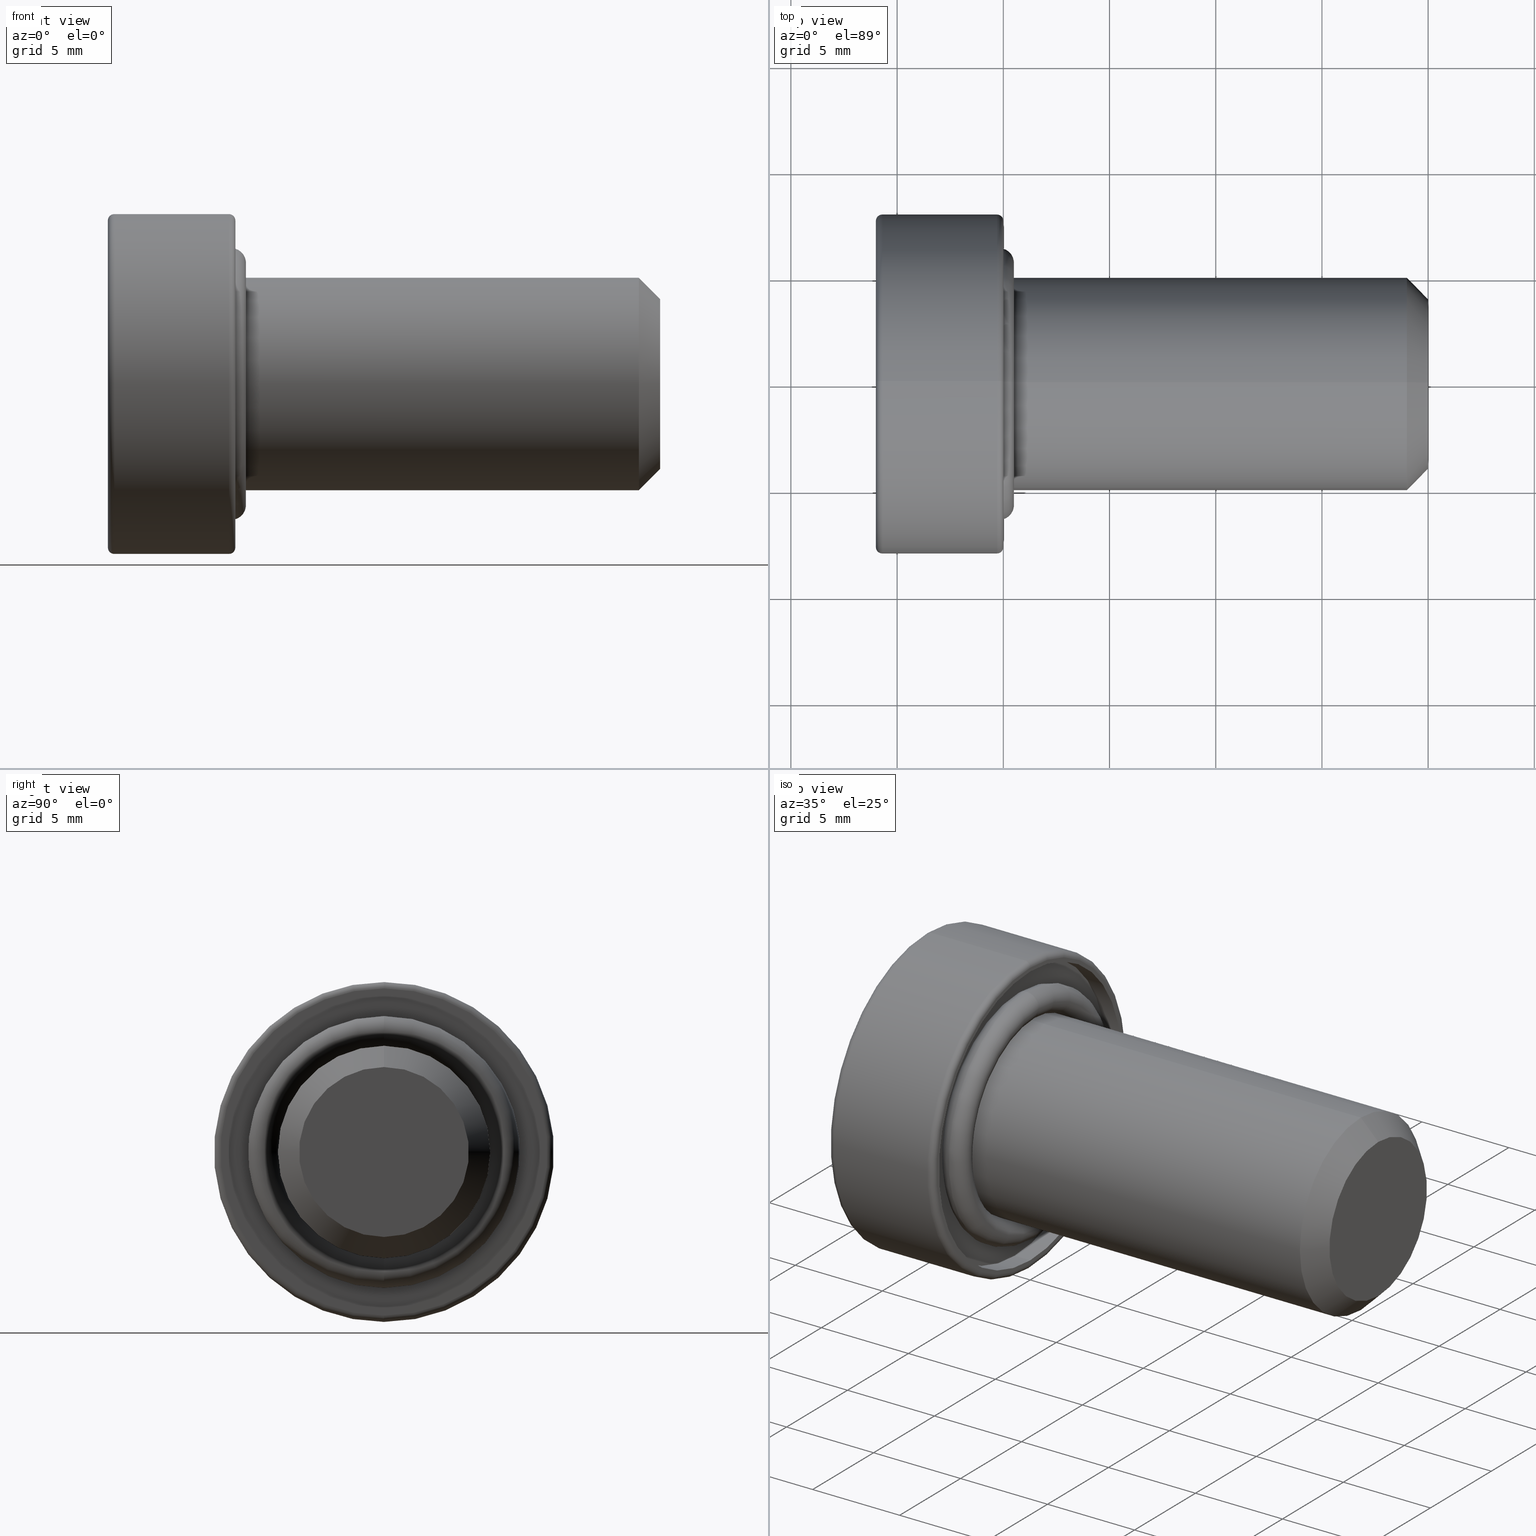
[diagram: canonical four-view strip — front | top / right | iso, engineering-drawing reading convention]
A machine part, canonical four-view strip (front | top / right | iso — engineering-drawing reading convention). The complete STEP part file that produces these views, byte-faithful:
ISO-10303-21;
HEADER;
FILE_DESCRIPTION (( 'STEP AP214' ),
    '1' );
FILE_NAME ('TL_418_M10_20.STEP',
    '2016-01-25T00:34:40',
    ( '' ),
    ( '' ),
    'SwSTEP 2.0',
    'SolidWorks 2015',
    '' );
FILE_SCHEMA (( 'AUTOMOTIVE_DESIGN' ));
ENDSEC;

DATA;
#1 = STYLED_ITEM ( 'NONE', ( #541 ), #718 ) ;
#2 = EDGE_CURVE ( 'NONE', #131, #130, #731, .T. ) ;
#3 = AXIS2_PLACEMENT_3D ( 'NONE', #296, #431, #243 ) ;
#4 = CARTESIAN_POINT ( 'NONE',  ( -0.2000000000000000900, 0.0000000000000000000, 0.0000000000000000000 ) ) ;
#5 = DIRECTION ( 'NONE',  ( -0.0000000000000000000, -1.000000000000000000, -0.0000000000000000000 ) ) ;
#6 = LINE ( 'NONE', #182, #668 ) ;
#7 = COLOUR_RGB ( '',0.7921568627450980000, 0.8196078431372548800, 0.9333333333333333500 ) ;
#8 = PRODUCT_DEFINITION_SHAPE ( 'NONE', 'NONE',  #820 ) ;
#9 = EDGE_LOOP ( 'NONE', ( #239, #242 ) ) ;
#10 = DIRECTION ( 'NONE',  ( 0.0000000000000000000, 0.0000000000000000000, 1.000000000000000000 ) ) ;
#11 = CARTESIAN_POINT ( 'NONE',  ( -0.2000000000000000900, 6.980486755139913100E-016, 5.700000000000000200 ) ) ;
#12 = ORIENTED_EDGE ( 'NONE', *, *, #689, .T. ) ;
#13 = ORIENTED_EDGE ( 'NONE', *, *, #388, .T. ) ;
#14 = EDGE_CURVE ( 'NONE', #605, #250, #246, .T. ) ;
#15 =( REPRESENTATION_RELATIONSHIP ('NONE','NONE', #551, #202 ) REPRESENTATION_RELATIONSHIP_WITH_TRANSFORMATION ( #579 )SHAPE_REPRESENTATION_RELATIONSHIP( ) );
#16 = DIRECTION ( 'NONE',  ( -1.000000000000000000, -0.0000000000000000000, -0.0000000000000000000 ) ) ;
#17 = STYLED_ITEM ( 'NONE', ( #685 ), #533 ) ;
#18 = FACE_OUTER_BOUND ( 'NONE', #819, .T. ) ;
#19 = EDGE_LOOP ( 'NONE', ( #676, #638, #223, #58 ) ) ;
#20 = EDGE_CURVE ( 'NONE', #787, #605, #557, .T. ) ;
#21 = DIRECTION ( 'NONE',  ( 1.000000000000000000, -0.0000000000000000000, -0.0000000000000000000 ) ) ;
#22 = ORIENTED_EDGE ( 'NONE', *, *, #69, .F. ) ;
#23 = SURFACE_STYLE_FILL_AREA ( #199 ) ;
#24 = ORIENTED_EDGE ( 'NONE', *, *, #587, .T. ) ;
#25 = CARTESIAN_POINT ( 'NONE',  ( -2.000000000000000000, -1.732050807568655800, -2.999999999999614100 ) ) ;
#26 = PLANE ( 'NONE',  #659 ) ;
#27 = ORIENTED_EDGE ( 'NONE', *, *, #112, .T. ) ;
#28 = DIRECTION ( 'NONE',  ( 1.000000000000000000, 0.0000000000000000000, 0.0000000000000000000 ) ) ;
#29 = ADVANCED_FACE ( 'NONE', ( #52 ), #571, .F. ) ;
#30 = DIRECTION ( 'NONE',  ( -0.0000000000000000000, -0.4999999999999999400, 0.8660254037844387100 ) ) ;
#31 = SURFACE_STYLE_FILL_AREA ( #132 ) ;
#32 = AXIS2_PLACEMENT_3D ( 'NONE', #384, #478, #396 ) ;
#33 = FACE_OUTER_BOUND ( 'NONE', #147, .T. ) ;
#34 = FACE_OUTER_BOUND ( 'NONE', #276, .T. ) ;
#35 = CARTESIAN_POINT ( 'NONE',  ( -0.9000000000000000200, 0.0000000000000000000, 0.0000000000000000000 ) ) ;
#36 = CARTESIAN_POINT ( 'NONE',  ( 20.00000000000000000, 0.0000000000000000000, 0.0000000000000000000 ) ) ;
#37 = AXIS2_PLACEMENT_3D ( 'NONE', #769, #639, #681 ) ;
#38 = UNCERTAINTY_MEASURE_WITH_UNIT (LENGTH_MEASURE( 1.000000000000000100E-005 ), #399, 'distance_accuracy_value', 'NONE');
#39 = EDGE_CURVE ( 'NONE', #337, #84, #540, .T. ) ;
#40 = DIRECTION ( 'NONE',  ( 1.000000000000000000, -0.0000000000000000000, -0.0000000000000000000 ) ) ;
#41 = CIRCLE ( 'NONE', #814, 7.500000000000000000 ) ;
#42 = ORIENTED_EDGE ( 'NONE', *, *, #815, .F. ) ;
#43 = EDGE_LOOP ( 'NONE', ( #621, #60, #27, #55 ) ) ;
#44 = ORIENTED_EDGE ( 'NONE', *, *, #441, .T. ) ;
#45 = ORIENTED_EDGE ( 'NONE', *, *, #39, .F. ) ;
#46 = ORIENTED_EDGE ( 'NONE', *, *, #39, .T. ) ;
#47 = VERTEX_POINT ( 'NONE', #561 ) ;
#48 = CARTESIAN_POINT ( 'NONE',  ( -2.000000000000000000, -3.464101615137309900, 0.0000000000000000000 ) ) ;
#49 = PRESENTATION_LAYER_ASSIGNMENT (  '', '', ( #1 ) ) ;
#50 = CARTESIAN_POINT ( 'NONE',  ( 19.00000000000000000, 0.0000000000000000000, 0.0000000000000000000 ) ) ;
#51 = LINE ( 'NONE', #168, #245 ) ;
#52 = FACE_OUTER_BOUND ( 'NONE', #209, .T. ) ;
#53 = DIRECTION ( 'NONE',  ( 0.0000000000000000000, 0.0000000000000000000, -1.000000000000000000 ) ) ;
#54 = TOROIDAL_SURFACE ( 'NONE', #570, 7.700000000000000200, 0.2999999999999999900 ) ;
#55 = ORIENTED_EDGE ( 'NONE', *, *, #467, .T. ) ;
#56 = EDGE_LOOP ( 'NONE', ( #484, #334, #658, #502 ) ) ;
#57 = ORIENTED_EDGE ( 'NONE', *, *, #524, .T. ) ;
#58 = ORIENTED_EDGE ( 'NONE', *, *, #174, .T. ) ;
#59 = DIRECTION ( 'NONE',  ( 0.0000000000000000000, 1.000000000000000000, -1.224646799147353200E-016 ) ) ;
#60 = ORIENTED_EDGE ( 'NONE', *, *, #608, .F. ) ;
#61 = EDGE_LOOP ( 'NONE', ( #397, #714, #544, #568 ) ) ;
#62 = DIRECTION ( 'NONE',  ( 0.0000000000000000000, 0.0000000000000000000, -1.000000000000000000 ) ) ;
#63 = CARTESIAN_POINT ( 'NONE',  ( -2.000000000000000000, 1.732050807568654900, 2.999999999999611400 ) ) ;
#64 = VECTOR ( 'NONE', #509, 1000.000000000000000 ) ;
#65 = ORIENTED_EDGE ( 'NONE', *, *, #587, .F. ) ;
#66 = AXIS2_PLACEMENT_3D ( 'NONE', #280, #266, #412 ) ;
#67 = VERTEX_POINT ( 'NONE', #757 ) ;
#68 = CARTESIAN_POINT ( 'NONE',  ( -6.000000000000000000, 1.732050807568654900, 2.999999999999611400 ) ) ;
#69 = EDGE_CURVE ( 'NONE', #218, #301, #365, .T. ) ;
#70 = DIRECTION ( 'NONE',  ( -1.000000000000000000, 0.0000000000000000000, 0.0000000000000000000 ) ) ;
#71 = ADVANCED_FACE ( 'NONE', ( #707 ), #206, .T. ) ;
#72 = DIRECTION ( 'NONE',  ( 0.0000000000000000000, 0.0000000000000000000, 1.000000000000000000 ) ) ;
#73 = PRODUCT_CONTEXT ( 'NONE', #527, 'mechanical' ) ;
#74 = LINE ( 'NONE', #68, #389 ) ;
#75 = VECTOR ( 'NONE', #644, 1000.000000000000100 ) ;
#76 = CONTEXT_DEPENDENT_SHAPE_REPRESENTATION ( #15, #8 ) ;
#77 = DIRECTION ( 'NONE',  ( 0.0000000000000000000, 0.0000000000000000000, 1.000000000000000000 ) ) ;
#78 = TOROIDAL_SURFACE ( 'NONE', #491, 5.700000000000000200, 0.6999999999999997300 ) ;
#79 = VERTEX_POINT ( 'NONE', #236 ) ;
#80 = ORIENTED_EDGE ( 'NONE', *, *, #542, .T. ) ;
#81 =( GEOMETRIC_REPRESENTATION_CONTEXT ( 3 ) GLOBAL_UNCERTAINTY_ASSIGNED_CONTEXT ( ( #38 ) ) GLOBAL_UNIT_ASSIGNED_CONTEXT ( ( #399, #259, #287 ) ) REPRESENTATION_CONTEXT ( 'NONE', 'WORKASPACE' ) );
#82 = PLANE ( 'NONE',  #701 ) ;
#83 = CARTESIAN_POINT ( 'NONE',  ( -6.000000000000000000, -1.732050807568653800, 2.999999999999613200 ) ) ;
#84 = VERTEX_POINT ( 'NONE', #387 ) ;
#85 = CARTESIAN_POINT ( 'NONE',  ( -0.2999999999999999300, 0.0000000000000000000, -8.000000000000000000 ) ) ;
#86 = DIRECTION ( 'NONE',  ( 0.0000000000000000000, 1.224646799147353500E-016, 1.000000000000000000 ) ) ;
#87 = AXIS2_PLACEMENT_3D ( 'NONE', #453, #703, #203 ) ;
#88 = EDGE_CURVE ( 'NONE', #358, #368, #229, .T. ) ;
#89 = DIRECTION ( 'NONE',  ( 0.0000000000000000000, 0.0000000000000000000, -1.000000000000000000 ) ) ;
#90 = FACE_OUTER_BOUND ( 'NONE', #647, .T. ) ;
#91 = ORIENTED_EDGE ( 'NONE', *, *, #632, .T. ) ;
#92 = CIRCLE ( 'NONE', #386, 5.000000000000000000 ) ;
#93 = VERTEX_POINT ( 'NONE', #248 ) ;
#94 = DIRECTION ( 'NONE',  ( 1.000000000000000000, 0.0000000000000000000, 0.0000000000000000000 ) ) ;
#95 = DIRECTION ( 'NONE',  ( 0.0000000000000000000, 0.0000000000000000000, -1.000000000000000000 ) ) ;
#96 = DIRECTION ( 'NONE',  ( 0.0000000000000000000, 0.0000000000000000000, -1.000000000000000000 ) ) ;
#97 = DIRECTION ( 'NONE',  ( 0.0000000000000000000, 1.000000000000000000, -1.224646799147353200E-016 ) ) ;
#98 = MECHANICAL_DESIGN_GEOMETRIC_PRESENTATION_REPRESENTATION (  '', ( #1 ), #140 ) ;
#99 = FACE_OUTER_BOUND ( 'NONE', #19, .T. ) ;
#100 = AXIS2_PLACEMENT_3D ( 'NONE', #50, #178, #486 ) ;
#101 = ORIENTED_EDGE ( 'NONE', *, *, #407, .T. ) ;
#102 = CIRCLE ( 'NONE', #409, 0.7000000000000000700 ) ;
#103 = ORIENTED_EDGE ( 'NONE', *, *, #738, .T. ) ;
#104 = CARTESIAN_POINT ( 'NONE',  ( 19.00000000000000000, 0.0000000000000000000, 5.000000000000000000 ) ) ;
#105 = ADVANCED_FACE ( 'NONE', ( #33 ), #82, .F. ) ;
#106 = CYLINDRICAL_SURFACE ( 'NONE', #390, 8.000000000000000000 ) ;
#107 = ORIENTED_EDGE ( 'NONE', *, *, #427, .F. ) ;
#108 = FACE_OUTER_BOUND ( 'NONE', #678, .T. ) ;
#109 = ADVANCED_FACE ( 'NONE', ( #520 ), #189, .F. ) ;
#110 = CARTESIAN_POINT ( 'NONE',  ( -0.2000000000000000900, 6.980486755139913100E-016, 5.700000000000000200 ) ) ;
#111 = PRESENTATION_LAYER_ASSIGNMENT (  '', '', ( #17 ) ) ;
#112 = EDGE_CURVE ( 'NONE', #301, #368, #686, .T. ) ;
#113 = PLANE ( 'NONE',  #146 ) ;
#114 = DIRECTION ( 'NONE',  ( 1.000000000000000000, 0.0000000000000000000, 0.0000000000000000000 ) ) ;
#115 = CARTESIAN_POINT ( 'NONE',  ( 0.0000000000000000000, 0.0000000000000000000, -7.700000000000000200 ) ) ;
#116 = VERTEX_POINT ( 'NONE', #687 ) ;
#117 = LINE ( 'NONE', #331, #772 ) ;
#118 = ORIENTED_EDGE ( 'NONE', *, *, #373, .F. ) ;
#119 = CARTESIAN_POINT ( 'NONE',  ( -0.2000000000000001800, 0.0000000000000000000, -5.000000000000000000 ) ) ;
#120 = CLOSED_SHELL ( 'NONE', ( #650, #71, #432, #188, #343, #233, #737, #487, #305, #355, #554, #195, #318, #422, #670, #726, #109, #172, #483, #29, #105, #327, #666 ) ) ;
#121 = UNCERTAINTY_MEASURE_WITH_UNIT (LENGTH_MEASURE( 1.000000000000000100E-005 ), #529, 'distance_accuracy_value', 'NONE');
#122 = ORIENTED_EDGE ( 'NONE', *, *, #815, .T. ) ;
#123 = CARTESIAN_POINT ( 'NONE',  ( -2.000000000000000000, -3.464101615137309900, 0.0000000000000000000 ) ) ;
#124 = PRODUCT_DEFINITION_SHAPE ( 'NONE', 'NONE',  #574 ) ;
#125 = CONICAL_SURFACE ( 'NONE', #180, 4.000000000000007100, 0.7853981633974445000 ) ;
#126 = AXIS2_PLACEMENT_3D ( 'NONE', #408, #152, #589 ) ;
#127 = DIRECTION ( 'NONE',  ( -0.0000000000000000000, 0.5000000000000004400, 0.8660254037844383700 ) ) ;
#128 = LINE ( 'NONE', #511, #784 ) ;
#129 = EDGE_CURVE ( 'NONE', #93, #751, #6, .T. ) ;
#130 = VERTEX_POINT ( 'NONE', #810 ) ;
#131 = VERTEX_POINT ( 'NONE', #115 ) ;
#132 = FILL_AREA_STYLE ('',( #196 ) ) ;
#133 = VERTEX_POINT ( 'NONE', #48 ) ;
#134 = CARTESIAN_POINT ( 'NONE',  ( -5.700000000000000200, 9.429780353434619000E-016, 7.700000000000000200 ) ) ;
#135 = CARTESIAN_POINT ( 'NONE',  ( 20.00000000000000000, 0.0000000000000000000, 0.0000000000000000000 ) ) ;
#136 = DIRECTION ( 'NONE',  ( 0.0000000000000000000, 0.0000000000000000000, -1.000000000000000000 ) ) ;
#137 = CIRCLE ( 'NONE', #424, 4.000000000000007100 ) ;
#138 = CARTESIAN_POINT ( 'NONE',  ( 20.00000000000000000, 0.0000000000000000000, 0.0000000000000000000 ) ) ;
#139 = ORIENTED_EDGE ( 'NONE', *, *, #388, .F. ) ;
#140 =( GEOMETRIC_REPRESENTATION_CONTEXT ( 3 ) GLOBAL_UNCERTAINTY_ASSIGNED_CONTEXT ( ( #619 ) ) GLOBAL_UNIT_ASSIGNED_CONTEXT ( ( #448, #653, #735 ) ) REPRESENTATION_CONTEXT ( 'NONE', 'WORKASPACE' ) );
#141 = ORIENTED_EDGE ( 'NONE', *, *, #14, .F. ) ;
#142 = ORIENTED_EDGE ( 'NONE', *, *, #768, .F. ) ;
#143 = EDGE_LOOP ( 'NONE', ( #210, #351, #12, #167 ) ) ;
#144 =( LENGTH_UNIT ( ) NAMED_UNIT ( * ) SI_UNIT ( .MILLI., .METRE. ) );
#145 = DIRECTION ( 'NONE',  ( 0.0000000000000000000, 0.0000000000000000000, -1.000000000000000000 ) ) ;
#146 = AXIS2_PLACEMENT_3D ( 'NONE', #563, #804, #295 ) ;
#147 = EDGE_LOOP ( 'NONE', ( #302, #426, #139, #466 ) ) ;
#148 = CARTESIAN_POINT ( 'NONE',  ( -5.700000000000000200, 9.797174393178825700E-016, 8.000000000000000000 ) ) ;
#149 = CARTESIAN_POINT ( 'NONE',  ( 0.0000000000000000000, 0.0000000000000000000, 0.0000000000000000000 ) ) ;
#150 = VECTOR ( 'NONE', #385, 1000.000000000000000 ) ;
#151 = LINE ( 'NONE', #123, #781 ) ;
#152 = DIRECTION ( 'NONE',  ( 1.000000000000000000, -0.0000000000000000000, -0.0000000000000000000 ) ) ;
#153 = CARTESIAN_POINT ( 'NONE',  ( -0.9000000000000000200, 0.0000000000000000000, 0.0000000000000000000 ) ) ;
#154 = CARTESIAN_POINT ( 'NONE',  ( -2.000000000000000000, 1.732050807568654900, 2.999999999999611400 ) ) ;
#155 = ORIENTED_EDGE ( 'NONE', *, *, #2, .T. ) ;
#156 = SURFACE_STYLE_USAGE ( .BOTH. , #643 ) ;
#157 = CARTESIAN_POINT ( 'NONE',  ( 20.00000000000000000, 0.0000000000000000000, 0.0000000000000000000 ) ) ;
#158 = MECHANICAL_DESIGN_GEOMETRIC_PRESENTATION_REPRESENTATION (  '', ( #17 ), #192 ) ;
#159 = EDGE_CURVE ( 'NONE', #300, #605, #348, .T. ) ;
#160 =( NAMED_UNIT ( * ) SI_UNIT ( $, .STERADIAN. ) SOLID_ANGLE_UNIT ( ) );
#161 = DIRECTION ( 'NONE',  ( 1.000000000000000000, -0.0000000000000000000, -0.0000000000000000000 ) ) ;
#162 = FACE_OUTER_BOUND ( 'NONE', #56, .T. ) ;
#163 = ORIENTED_EDGE ( 'NONE', *, *, #493, .T. ) ;
#164 = DIRECTION ( 'NONE',  ( 0.0000000000000000000, 0.0000000000000000000, -1.000000000000000000 ) ) ;
#165 = DIRECTION ( 'NONE',  ( 0.0000000000000000000, 0.0000000000000000000, -1.000000000000000000 ) ) ;
#166 = DIRECTION ( 'NONE',  ( -1.000000000000000000, -0.0000000000000000000, -0.0000000000000000000 ) ) ;
#167 = ORIENTED_EDGE ( 'NONE', *, *, #470, .F. ) ;
#168 = CARTESIAN_POINT ( 'NONE',  ( -6.000000000000000000, -1.732050807568653800, 2.999999999999613200 ) ) ;
#169 = EDGE_CURVE ( 'NONE', #794, #485, #183, .T. ) ;
#170 = VECTOR ( 'NONE', #680, 1000.000000000000000 ) ;
#171 = ORIENTED_EDGE ( 'NONE', *, *, #721, .T. ) ;
#172 = ADVANCED_FACE ( 'NONE', ( #330 ), #113, .F. ) ;
#173 = AXIS2_PLACEMENT_3D ( 'NONE', #392, #181, #62 ) ;
#174 = EDGE_CURVE ( 'NONE', #742, #84, #480, .T. ) ;
#175 = DIRECTION ( 'NONE',  ( -1.000000000000000000, 0.0000000000000000000, 0.0000000000000000000 ) ) ;
#176 = FACE_OUTER_BOUND ( 'NONE', #354, .T. ) ;
#177 = EDGE_LOOP ( 'NONE', ( #22, #410, #809, #727 ) ) ;
#178 = DIRECTION ( 'NONE',  ( -1.000000000000000000, 0.0000000000000000000, 0.0000000000000000000 ) ) ;
#179 = AXIS2_PLACEMENT_3D ( 'NONE', #535, #468, #708 ) ;
#180 = AXIS2_PLACEMENT_3D ( 'NONE', #135, #175, #633 ) ;
#181 = DIRECTION ( 'NONE',  ( 1.000000000000000000, -0.0000000000000000000, -0.0000000000000000000 ) ) ;
#182 = CARTESIAN_POINT ( 'NONE',  ( 20.00000000000000000, 0.0000000000000000000, 4.000000000000007100 ) ) ;
#183 = LINE ( 'NONE', #361, #170 ) ;
#184 = SURFACE_STYLE_FILL_AREA ( #640 ) ;
#185 = DIRECTION ( 'NONE',  ( 1.000000000000000000, 0.0000000000000000000, 0.0000000000000000000 ) ) ;
#186 = EDGE_CURVE ( 'NONE', #67, #751, #813, .T. ) ;
#187 = CARTESIAN_POINT ( 'NONE',  ( -0.2999999999999999300, 0.0000000000000000000, 0.0000000000000000000 ) ) ;
#188 = ADVANCED_FACE ( 'NONE', ( #646 ), #125, .T. ) ;
#189 = PLANE ( 'NONE',  #795 ) ;
#190 = DIRECTION ( 'NONE',  ( -0.0000000000000000000, 1.000000000000000000, -5.007715329124508700E-016 ) ) ;
#191 = TOROIDAL_SURFACE ( 'NONE', #371, 5.700000000000000200, 0.6999999999999997300 ) ;
#192 =( GEOMETRIC_REPRESENTATION_CONTEXT ( 3 ) GLOBAL_UNCERTAINTY_ASSIGNED_CONTEXT ( ( #121 ) ) GLOBAL_UNIT_ASSIGNED_CONTEXT ( ( #529, #528, #817 ) ) REPRESENTATION_CONTEXT ( 'NONE', 'WORKASPACE' ) );
#193 = DIRECTION ( 'NONE',  ( 0.0000000000000000000, 0.0000000000000000000, -1.000000000000000000 ) ) ;
#194 = ORIENTED_EDGE ( 'NONE', *, *, #2, .F. ) ;
#195 = ADVANCED_FACE ( 'NONE', ( #800 ), #741, .T. ) ;
#196 = FILL_AREA_STYLE_COLOUR ( '', #204 ) ;
#197 = EDGE_CURVE ( 'NONE', #300, #807, #625, .T. ) ;
#198 = CARTESIAN_POINT ( 'NONE',  ( -2.000000000000000000, 1.732050807568653600, -2.999999999999614100 ) ) ;
#199 = FILL_AREA_STYLE ('',( #649 ) ) ;
#200 = ORIENTED_EDGE ( 'NONE', *, *, #364, .F. ) ;
#201 = CARTESIAN_POINT ( 'NONE',  ( -0.2000000000000000900, 0.0000000000000000000, 0.0000000000000000000 ) ) ;
#202 = SHAPE_REPRESENTATION ( 'screw', ( #517 ), #475 ) ;
#203 = DIRECTION ( 'NONE',  ( 0.0000000000000000000, 0.0000000000000000000, -1.000000000000000000 ) ) ;
#204 = COLOUR_RGB ( '',0.7921568627450980000, 0.8196078431372548800, 0.9333333333333333500 ) ;
#205 = SURFACE_STYLE_USAGE ( .BOTH. , #780 ) ;
#206 = TOROIDAL_SURFACE ( 'NONE', #573, 7.700000000000000200, 0.2999999999999999900 ) ;
#207 = DIRECTION ( 'NONE',  ( 0.0000000000000000000, 0.0000000000000000000, -1.000000000000000000 ) ) ;
#208 = FACE_OUTER_BOUND ( 'NONE', #754, .T. ) ;
#209 = EDGE_LOOP ( 'NONE', ( #46, #464, #284, #457 ) ) ;
#210 = ORIENTED_EDGE ( 'NONE', *, *, #20, .F. ) ;
#211 = DIRECTION ( 'NONE',  ( 0.0000000000000000000, 0.0000000000000000000, -1.000000000000000000 ) ) ;
#212 = APPLICATION_CONTEXT ( 'automotive_design' ) ;
#213 = AXIS2_PLACEMENT_3D ( 'NONE', #661, #340, #145 ) ;
#214 = EDGE_CURVE ( 'NONE', #401, #133, #151, .T. ) ;
#215 =( NAMED_UNIT ( * ) SI_UNIT ( $, .STERADIAN. ) SOLID_ANGLE_UNIT ( ) );
#216 = TOROIDAL_SURFACE ( 'NONE', #173, 5.700000000000000200, 0.6999999999999997300 ) ;
#217 = CARTESIAN_POINT ( 'NONE',  ( -6.000000000000000000, -3.464101615137309900, 0.0000000000000000000 ) ) ;
#218 = VERTEX_POINT ( 'NONE', #363 ) ;
#219 = ADVANCED_BREP_SHAPE_REPRESENTATION ( '', ( #533, #718, #517 ), #475 ) ;
#220 = ORIENTED_EDGE ( 'NONE', *, *, #665, .T. ) ;
#221 = DIRECTION ( 'NONE',  ( 0.0000000000000000000, 0.0000000000000000000, 1.000000000000000000 ) ) ;
#222 = DIRECTION ( 'NONE',  ( 1.000000000000000000, 0.0000000000000000000, 0.0000000000000000000 ) ) ;
#223 = ORIENTED_EDGE ( 'NONE', *, *, #524, .F. ) ;
#224 = DIRECTION ( 'NONE',  ( 0.0000000000000000000, 1.224646799147353200E-016, 1.000000000000000000 ) ) ;
#225 = CARTESIAN_POINT ( 'NONE',  ( -0.2000000000000000900, 0.0000000000000000000, 0.0000000000000000000 ) ) ;
#226 = AXIS2_PLACEMENT_3D ( 'NONE', #712, #419, #669 ) ;
#227 = CARTESIAN_POINT ( 'NONE',  ( -0.9000000000000000200, 0.0000000000000000000, 5.000000000000000000 ) ) ;
#228 = LINE ( 'NONE', #322, #705 ) ;
#229 = CIRCLE ( 'NONE', #534, 0.7000000000000000700 ) ;
#230 = VECTOR ( 'NONE', #724, 1000.000000000000000 ) ;
#231 = DIRECTION ( 'NONE',  ( 1.000000000000000000, 0.0000000000000000000, 0.0000000000000000000 ) ) ;
#232 = DIRECTION ( 'NONE',  ( 0.0000000000000000000, 0.0000000000000000000, 1.000000000000000000 ) ) ;
#233 = ADVANCED_FACE ( 'NONE', ( #609 ), #106, .T. ) ;
#234 = ORIENTED_EDGE ( 'NONE', *, *, #482, .T. ) ;
#235 = SURFACE_SIDE_STYLE ('',( #23 ) ) ;
#236 = CARTESIAN_POINT ( 'NONE',  ( -6.000000000000000000, -1.732050807568655800, -2.999999999999614100 ) ) ;
#237 = FACE_OUTER_BOUND ( 'NONE', #268, .T. ) ;
#238 = ORIENTED_EDGE ( 'NONE', *, *, #542, .F. ) ;
#239 = ORIENTED_EDGE ( 'NONE', *, *, #560, .F. ) ;
#240 = EDGE_CURVE ( 'NONE', #250, #807, #443, .T. ) ;
#241 = ORIENTED_EDGE ( 'NONE', *, *, #682, .F. ) ;
#242 = ORIENTED_EDGE ( 'NONE', *, *, #803, .F. ) ;
#243 = DIRECTION ( 'NONE',  ( 0.0000000000000000000, 0.0000000000000000000, -1.000000000000000000 ) ) ;
#244 = DIRECTION ( 'NONE',  ( -0.7071067811865503500, 8.659560562354900800E-017, -0.7071067811865446900 ) ) ;
#245 = VECTOR ( 'NONE', #538, 1000.000000000000000 ) ;
#246 = LINE ( 'NONE', #418, #391 ) ;
#247 = CARTESIAN_POINT ( 'NONE',  ( 0.0000000000000000000, 0.0000000000000000000, 0.0000000000000000000 ) ) ;
#248 = CARTESIAN_POINT ( 'NONE',  ( 20.00000000000000000, 0.0000000000000000000, 4.000000000000007100 ) ) ;
#249 = CIRCLE ( 'NONE', #447, 6.400000000000000400 ) ;
#250 = VERTEX_POINT ( 'NONE', #488 ) ;
#251 = DIRECTION ( 'NONE',  ( 0.0000000000000000000, -0.8660254037844387100, -0.4999999999999999400 ) ) ;
#252 = EDGE_LOOP ( 'NONE', ( #660, #171, #316, #513 ) ) ;
#253 = DIRECTION ( 'NONE',  ( 0.0000000000000000000, 0.0000000000000000000, -1.000000000000000000 ) ) ;
#254 = AXIS2_PLACEMENT_3D ( 'NONE', #383, #40, #691 ) ;
#255 = VECTOR ( 'NONE', #436, 1000.000000000000100 ) ;
#256 = EDGE_CURVE ( 'NONE', #734, #67, #758, .T. ) ;
#257 = CARTESIAN_POINT ( 'NONE',  ( -0.9000000000000000200, 0.0000000000000000000, -7.500000000000000000 ) ) ;
#258 = DIRECTION ( 'NONE',  ( 1.000000000000000000, 0.0000000000000000000, 0.0000000000000000000 ) ) ;
#259 =( NAMED_UNIT ( * ) PLANE_ANGLE_UNIT ( ) SI_UNIT ( $, .RADIAN. ) );
#260 = CARTESIAN_POINT ( 'NONE',  ( 20.00000000000000000, 0.0000000000000000000, 0.0000000000000000000 ) ) ;
#261 = CIRCLE ( 'NONE', #672, 4.000000000000007100 ) ;
#262 = AXIS2_PLACEMENT_3D ( 'NONE', #766, #599, #576 ) ;
#263 = CARTESIAN_POINT ( 'NONE',  ( -2.000000000000000000, -1.732050807568655800, -2.999999999999614100 ) ) ;
#264 = ORIENTED_EDGE ( 'NONE', *, *, #665, .F. ) ;
#265 = CARTESIAN_POINT ( 'NONE',  ( 0.0000000000000000000, 0.0000000000000000000, 0.0000000000000000000 ) ) ;
#266 = DIRECTION ( 'NONE',  ( 1.000000000000000000, 0.0000000000000000000, 0.0000000000000000000 ) ) ;
#267 = CIRCLE ( 'NONE', #277, 5.000000000000000000 ) ;
#268 = EDGE_LOOP ( 'NONE', ( #80, #559, #715, #44 ) ) ;
#269 = AXIS2_PLACEMENT_3D ( 'NONE', #375, #567, #193 ) ;
#270 = DIRECTION ( 'NONE',  ( -1.000000000000000000, -0.0000000000000000000, -0.0000000000000000000 ) ) ;
#271 = CARTESIAN_POINT ( 'NONE',  ( 0.0000000000000000000, 9.184850993605147900E-016, 7.500000000000000000 ) ) ;
#272 = DIRECTION ( 'NONE',  ( -0.0000000000000000000, -1.000000000000000000, -0.0000000000000000000 ) ) ;
#273 = DIRECTION ( 'NONE',  ( 0.0000000000000000000, 0.0000000000000000000, -1.000000000000000000 ) ) ;
#274 = VECTOR ( 'NONE', #270, 1000.000000000000000 ) ;
#275 = LINE ( 'NONE', #25, #444 ) ;
#276 = EDGE_LOOP ( 'NONE', ( #490, #455, #13, #697, #57, #103 ) ) ;
#277 = AXIS2_PLACEMENT_3D ( 'NONE', #461, #459, #347 ) ;
#278 = EDGE_CURVE ( 'NONE', #602, #787, #462, .T. ) ;
#279 =( NAMED_UNIT ( * ) PLANE_ANGLE_UNIT ( ) SI_UNIT ( $, .RADIAN. ) );
#280 = CARTESIAN_POINT ( 'NONE',  ( -6.000000000000000000, 0.0000000000000000000, 0.0000000000000000000 ) ) ;
#281 = CYLINDRICAL_SURFACE ( 'NONE', #545, 5.000000000000000000 ) ;
#282 = DIRECTION ( 'NONE',  ( 1.000000000000000000, 0.0000000000000000000, 0.0000000000000000000 ) ) ;
#283 = ORIENTED_EDGE ( 'NONE', *, *, #427, .T. ) ;
#284 = ORIENTED_EDGE ( 'NONE', *, *, #294, .F. ) ;
#285 = SURFACE_STYLE_USAGE ( .BOTH. , #235 ) ;
#286 = DIRECTION ( 'NONE',  ( 1.000000000000000000, 0.0000000000000000000, 0.0000000000000000000 ) ) ;
#287 =( NAMED_UNIT ( * ) SI_UNIT ( $, .STERADIAN. ) SOLID_ANGLE_UNIT ( ) );
#288 = DIRECTION ( 'NONE',  ( 1.000000000000000000, -0.0000000000000000000, -0.0000000000000000000 ) ) ;
#289 = UNCERTAINTY_MEASURE_WITH_UNIT (LENGTH_MEASURE( 1.000000000000000100E-005 ), #144, 'distance_accuracy_value', 'NONE');
#290 =( LENGTH_UNIT ( ) NAMED_UNIT ( * ) SI_UNIT ( .MILLI., .METRE. ) );
#291 = VECTOR ( 'NONE', #442, 1000.000000000000000 ) ;
#292 = FACE_OUTER_BOUND ( 'NONE', #143, .T. ) ;
#293 = AXIS2_PLACEMENT_3D ( 'NONE', #584, #774, #253 ) ;
#294 = EDGE_CURVE ( 'NONE', #531, #742, #423, .T. ) ;
#295 = DIRECTION ( 'NONE',  ( -1.000000000000000000, 0.0000000000000000000, -0.0000000000000000000 ) ) ;
#296 = CARTESIAN_POINT ( 'NONE',  ( -5.700000000000000200, 0.0000000000000000000, 0.0000000000000000000 ) ) ;
#297 = FACE_OUTER_BOUND ( 'NONE', #792, .T. ) ;
#298 = VERTEX_POINT ( 'NONE', #257 ) ;
#299 = SHAPE_REPRESENTATION_RELATIONSHIP ( 'NONE' , 'NONE' ,  #202, #219 ) ;
#300 = VERTEX_POINT ( 'NONE', #695 ) ;
#301 = VERTEX_POINT ( 'NONE', #380 ) ;
#302 = ORIENTED_EDGE ( 'NONE', *, *, #499, .T. ) ;
#303 = CARTESIAN_POINT ( 'NONE',  ( -2.000000000000000000, 3.464101615137311200, -1.734723475976807100E-015 ) ) ;
#304 = AXIS2_PLACEMENT_3D ( 'NONE', #532, #479, #723 ) ;
#305 = ADVANCED_FACE ( 'NONE', ( #90, #314 ), #552, .T. ) ;
#306 = AXIS2_PLACEMENT_3D ( 'NONE', #671, #674, #746 ) ;
#307 = DIRECTION ( 'NONE',  ( 0.0000000000000000000, 1.224646799147353200E-016, 1.000000000000000000 ) ) ;
#308 = PRODUCT ( 'screw', 'screw', '', ( #73 ) ) ;
#309 = DIRECTION ( 'NONE',  ( 0.0000000000000000000, 0.4999999999999999400, -0.8660254037844387100 ) ) ;
#310 = EDGE_CURVE ( 'NONE', #401, #79, #403, .T. ) ;
#311 = EDGE_CURVE ( 'NONE', #84, #526, #562, .T. ) ;
#312 = FACE_BOUND ( 'NONE', #9, .T. ) ;
#313 = VERTEX_POINT ( 'NONE', #198 ) ;
#314 = FACE_BOUND ( 'NONE', #510, .T. ) ;
#315 = DIRECTION ( 'NONE',  ( 0.0000000000000000000, 0.0000000000000000000, -1.000000000000000000 ) ) ;
#316 = ORIENTED_EDGE ( 'NONE', *, *, #803, .T. ) ;
#317 = DIRECTION ( 'NONE',  ( -0.0000000000000000000, 5.007715329124508700E-016, 1.000000000000000000 ) ) ;
#318 = ADVANCED_FACE ( 'NONE', ( #739 ), #692, .T. ) ;
#319 = CARTESIAN_POINT ( 'NONE',  ( -0.9000000000000000200, 9.184850993605147900E-016, 7.500000000000000000 ) ) ;
#320 = AXIS2_PLACEMENT_3D ( 'NONE', #693, #652, #600 ) ;
#321 = VECTOR ( 'NONE', #190, 1000.000000000000000 ) ;
#322 = CARTESIAN_POINT ( 'NONE',  ( -2.000000000000000000, 1.732050807568653600, -2.999999999999614100 ) ) ;
#323 = AXIS2_PLACEMENT_3D ( 'NONE', #793, #114, #164 ) ;
#324 = ORIENTED_EDGE ( 'NONE', *, *, #373, .T. ) ;
#325 = EDGE_LOOP ( 'NONE', ( #238, #725, #496, #711, #45, #613 ) ) ;
#326 = EDGE_LOOP ( 'NONE', ( #107, #762, #241, #760 ) ) ;
#327 = ADVANCED_FACE ( 'NONE', ( #237 ), #575, .F. ) ;
#328 = ADVANCED_FACE ( 'NONE', ( #720 ), #374, .T. ) ;
#329 = CARTESIAN_POINT ( 'NONE',  ( 20.00000000000000000, 0.0000000000000000000, 5.000000000000000000 ) ) ;
#330 = FACE_OUTER_BOUND ( 'NONE', #565, .T. ) ;
#331 = CARTESIAN_POINT ( 'NONE',  ( -2.000000000000000000, -3.464101615137309900, 0.0000000000000000000 ) ) ;
#332 = AXIS2_PLACEMENT_3D ( 'NONE', #634, #667, #654 ) ;
#333 = EDGE_CURVE ( 'NONE', #679, #473, #41, .T. ) ;
#334 = ORIENTED_EDGE ( 'NONE', *, *, #467, .F. ) ;
#335 = DIRECTION ( 'NONE',  ( 0.0000000000000000000, 0.0000000000000000000, 1.000000000000000000 ) ) ;
#336 = CIRCLE ( 'NONE', #213, 0.2999999999999999300 ) ;
#337 = VERTEX_POINT ( 'NONE', #706 ) ;
#338 = ORIENTED_EDGE ( 'NONE', *, *, #482, .F. ) ;
#339 = CARTESIAN_POINT ( 'NONE',  ( -6.000000000000000000, 0.0000000000000000000, 0.0000000000000000000 ) ) ;
#340 = DIRECTION ( 'NONE',  ( 0.0000000000000000000, -1.000000000000000000, 0.0000000000000000000 ) ) ;
#341 = AXIS2_PLACEMENT_3D ( 'NONE', #4, #21, #89 ) ;
#342 = ADVANCED_FACE ( 'NONE', ( #530 ), #216, .T. ) ;
#343 = ADVANCED_FACE ( 'NONE', ( #18 ), #507, .F. ) ;
#344 = AXIS2_PLACEMENT_3D ( 'NONE', #808, #553, #614 ) ;
#345 = APPLICATION_PROTOCOL_DEFINITION ( 'draft international standard', 'automotive_design', 1998, #543 ) ;
#346 = DIRECTION ( 'NONE',  ( 1.000000000000000000, 0.0000000000000000000, 0.0000000000000000000 ) ) ;
#347 = DIRECTION ( 'NONE',  ( 0.0000000000000000000, 0.0000000000000000000, -1.000000000000000000 ) ) ;
#348 = CIRCLE ( 'NONE', #3, 8.000000000000000000 ) ;
#349 = ORIENTED_EDGE ( 'NONE', *, *, #333, .F. ) ;
#350 = CIRCLE ( 'NONE', #791, 0.2999999999999999300 ) ;
#351 = ORIENTED_EDGE ( 'NONE', *, *, #278, .F. ) ;
#352 = EDGE_CURVE ( 'NONE', #133, #794, #546, .T. ) ;
#353 = DIRECTION ( 'NONE',  ( 0.0000000000000000000, 1.000000000000000000, -1.224646799147353200E-016 ) ) ;
#354 = EDGE_LOOP ( 'NONE', ( #264, #42, #417, #797 ) ) ;
#355 = ADVANCED_FACE ( 'NONE', ( #176 ), #655, .F. ) ;
#356 = CARTESIAN_POINT ( 'NONE',  ( 20.00000000000000000, 4.898587196589421700E-016, -4.000000000000007100 ) ) ;
#357 = VECTOR ( 'NONE', #127, 1000.000000000000000 ) ;
#358 = VERTEX_POINT ( 'NONE', #515 ) ;
#359 = AXIS2_PLACEMENT_3D ( 'NONE', #729, #222, #645 ) ;
#360 = AXIS2_PLACEMENT_3D ( 'NONE', #134, #501, #307 ) ;
#361 = CARTESIAN_POINT ( 'NONE',  ( -2.000000000000000000, -1.732050807568653800, 2.999999999999613200 ) ) ;
#362 = CARTESIAN_POINT ( 'NONE',  ( -2.000000000000000000, 1.732050807568654900, 2.999999999999611400 ) ) ;
#363 = CARTESIAN_POINT ( 'NONE',  ( -0.2000000000000000900, 7.837739514543060900E-016, 6.400000000000000400 ) ) ;
#364 = EDGE_CURVE ( 'NONE', #368, #301, #675, .T. ) ;
#365 = CIRCLE ( 'NONE', #450, 0.7000000000000000700 ) ;
#366 = PRODUCT ( 'TL_418_M10_20', 'TL_418_M10_20', '', ( #783 ) ) ;
#367 = VECTOR ( 'NONE', #161, 1000.000000000000000 ) ;
#368 = VERTEX_POINT ( 'NONE', #119 ) ;
#369 = PRODUCT_DEFINITION_CONTEXT ( 'detailed design', #543, 'design' ) ;
#370 = ORIENTED_EDGE ( 'NONE', *, *, #460, .T. ) ;
#371 = AXIS2_PLACEMENT_3D ( 'NONE', #225, #764, #273 ) ;
#372 = DIRECTION ( 'NONE',  ( 0.0000000000000000000, -0.5000000000000005600, 0.8660254037844382600 ) ) ;
#373 = EDGE_CURVE ( 'NONE', #807, #131, #336, .T. ) ;
#374 = TOROIDAL_SURFACE ( 'NONE', #87, 5.700000000000000200, 0.6999999999999997300 ) ;
#375 = CARTESIAN_POINT ( 'NONE',  ( -6.000000000000000000, 0.0000000000000000000, 0.0000000000000000000 ) ) ;
#376 = ORIENTED_EDGE ( 'NONE', *, *, #88, .F. ) ;
#377 = ORIENTED_EDGE ( 'NONE', *, *, #673, .T. ) ;
#378 = DIRECTION ( 'NONE',  ( 1.000000000000000000, -0.0000000000000000000, -0.0000000000000000000 ) ) ;
#379 = ORIENTED_EDGE ( 'NONE', *, *, #69, .T. ) ;
#380 = CARTESIAN_POINT ( 'NONE',  ( -0.2000000000000001800, 6.123233995736766300E-016, 5.000000000000000000 ) ) ;
#381 = ORIENTED_EDGE ( 'NONE', *, *, #721, .F. ) ;
#382 = CARTESIAN_POINT ( 'NONE',  ( -5.700000000000000200, 0.0000000000000000000, 0.0000000000000000000 ) ) ;
#383 = CARTESIAN_POINT ( 'NONE',  ( -0.9000000000000000200, 0.0000000000000000000, 0.0000000000000000000 ) ) ;
#384 = CARTESIAN_POINT ( 'NONE',  ( 0.0000000000000000000, 0.0000000000000000000, 0.0000000000000000000 ) ) ;
#385 = DIRECTION ( 'NONE',  ( -1.000000000000000000, -0.0000000000000000000, -0.0000000000000000000 ) ) ;
#386 = AXIS2_PLACEMENT_3D ( 'NONE', #35, #28, #96 ) ;
#387 = CARTESIAN_POINT ( 'NONE',  ( -6.000000000000000000, 3.464101615137311200, -1.734723475976807100E-015 ) ) ;
#388 = EDGE_CURVE ( 'NONE', #794, #531, #818, .T. ) ;
#389 = VECTOR ( 'NONE', #779, 1000.000000000000000 ) ;
#390 = AXIS2_PLACEMENT_3D ( 'NONE', #743, #753, #615 ) ;
#391 = VECTOR ( 'NONE', #428, 1000.000000000000000 ) ;
#392 = CARTESIAN_POINT ( 'NONE',  ( -0.2000000000000000900, 0.0000000000000000000, 0.0000000000000000000 ) ) ;
#393 = CIRCLE ( 'NONE', #616, 0.2999999999999999300 ) ;
#394 = ORIENTED_EDGE ( 'NONE', *, *, #197, .T. ) ;
#395 = ORIENTED_EDGE ( 'NONE', *, *, #256, .F. ) ;
#396 = DIRECTION ( 'NONE',  ( 1.000000000000000000, 0.0000000000000000000, 0.0000000000000000000 ) ) ;
#397 = ORIENTED_EDGE ( 'NONE', *, *, #159, .T. ) ;
#398 = EDGE_CURVE ( 'NONE', #807, #250, #489, .T. ) ;
#399 =( LENGTH_UNIT ( ) NAMED_UNIT ( * ) SI_UNIT ( .MILLI., .METRE. ) );
#400 = DIRECTION ( 'NONE',  ( -1.000000000000000000, -0.0000000000000000000, -0.0000000000000000000 ) ) ;
#401 = VERTEX_POINT ( 'NONE', #263 ) ;
#402 = FILL_AREA_STYLE_COLOUR ( '', #7 ) ;
#403 = LINE ( 'NONE', #763, #274 ) ;
#404 = APPLICATION_PROTOCOL_DEFINITION ( 'draft international standard', 'automotive_design', 1998, #527 ) ;
#405 = CARTESIAN_POINT ( 'NONE',  ( -0.9000000000000000200, 0.0000000000000000000, -7.500000000000000000 ) ) ;
#406 = COLOUR_RGB ( '',0.7921568627450980000, 0.8196078431372548800, 0.9333333333333333500 ) ;
#407 = EDGE_CURVE ( 'NONE', #79, #773, #635, .T. ) ;
#408 = CARTESIAN_POINT ( 'NONE',  ( -0.2000000000000001800, 0.0000000000000000000, 0.0000000000000000000 ) ) ;
#409 = AXIS2_PLACEMENT_3D ( 'NONE', #11, #97, #86 ) ;
#410 = ORIENTED_EDGE ( 'NONE', *, *, #782, .T. ) ;
#411 = CARTESIAN_POINT ( 'NONE',  ( 20.00000000000000000, 0.0000000000000000000, 0.0000000000000000000 ) ) ;
#412 = DIRECTION ( 'NONE',  ( 0.0000000000000000000, 0.0000000000000000000, -1.000000000000000000 ) ) ;
#413 = VECTOR ( 'NONE', #416, 1000.000000000000000 ) ;
#414 = ORIENTED_EDGE ( 'NONE', *, *, #398, .F. ) ;
#415 = VECTOR ( 'NONE', #5, 1000.000000000000000 ) ;
#416 = DIRECTION ( 'NONE',  ( -1.000000000000000000, -0.0000000000000000000, -0.0000000000000000000 ) ) ;
#417 = ORIENTED_EDGE ( 'NONE', *, *, #506, .T. ) ;
#418 = CARTESIAN_POINT ( 'NONE',  ( -6.000000000000000000, 9.797174393178825700E-016, 8.000000000000000000 ) ) ;
#419 = DIRECTION ( 'NONE',  ( 1.000000000000000000, 0.0000000000000000000, 0.0000000000000000000 ) ) ;
#420 = CARTESIAN_POINT ( 'NONE',  ( -6.000000000000000000, 0.0000000000000000000, -7.700000000000000200 ) ) ;
#421 = CARTESIAN_POINT ( 'NONE',  ( -0.2999999999999999300, 9.429780353434619000E-016, 7.700000000000000200 ) ) ;
#422 = ADVANCED_FACE ( 'NONE', ( #297 ), #790, .T. ) ;
#423 = LINE ( 'NONE', #303, #255 ) ;
#424 = AXIS2_PLACEMENT_3D ( 'NONE', #411, #286, #604 ) ;
#425 = CIRCLE ( 'NONE', #262, 7.700000000000000200 ) ;
#426 = ORIENTED_EDGE ( 'NONE', *, *, #648, .F. ) ;
#427 = EDGE_CURVE ( 'NONE', #734, #93, #137, .T. ) ;
#428 = DIRECTION ( 'NONE',  ( 1.000000000000000000, 0.0000000000000000000, 0.0000000000000000000 ) ) ;
#429 = DIRECTION ( 'NONE',  ( -1.000000000000000000, -0.0000000000000000000, -0.0000000000000000000 ) ) ;
#430 = ORIENTED_EDGE ( 'NONE', *, *, #765, .T. ) ;
#431 = DIRECTION ( 'NONE',  ( 1.000000000000000000, 0.0000000000000000000, 0.0000000000000000000 ) ) ;
#432 = ADVANCED_FACE ( 'NONE', ( #805 ), #281, .T. ) ;
#433 = ADVANCED_FACE ( 'NONE', ( #162 ), #191, .T. ) ;
#434 = FACE_BOUND ( 'NONE', #325, .T. ) ;
#435 = CLOSED_SHELL ( 'NONE', ( #342, #610, #433, #328 ) ) ;
#436 = DIRECTION ( 'NONE',  ( -0.0000000000000000000, 0.5000000000000005600, -0.8660254037844382600 ) ) ;
#437 = AXIS2_PLACEMENT_3D ( 'NONE', #153, #94, #136 ) ;
#438 = CIRCLE ( 'NONE', #359, 7.500000000000000000 ) ;
#439 = CARTESIAN_POINT ( 'NONE',  ( -0.2000000000000001800, 0.0000000000000000000, 0.0000000000000000000 ) ) ;
#440 = EDGE_LOOP ( 'NONE', ( #569, #377, #194, #118 ) ) ;
#441 = EDGE_CURVE ( 'NONE', #133, #773, #117, .T. ) ;
#442 = DIRECTION ( 'NONE',  ( 1.000000000000000000, 0.0000000000000000000, 0.0000000000000000000 ) ) ;
#443 = CIRCLE ( 'NONE', #344, 8.000000000000000000 ) ;
#444 = VECTOR ( 'NONE', #799, 1000.000000000000000 ) ;
#445 = CARTESIAN_POINT ( 'NONE',  ( -2.000000000000000000, -3.464101615137309900, 0.0000000000000000000 ) ) ;
#446 = DIRECTION ( 'NONE',  ( -0.7071067811865503500, 0.0000000000000000000, 0.7071067811865446900 ) ) ;
#447 = AXIS2_PLACEMENT_3D ( 'NONE', #474, #378, #717 ) ;
#448 =( LENGTH_UNIT ( ) NAMED_UNIT ( * ) SI_UNIT ( .MILLI., .METRE. ) );
#449 = DIRECTION ( 'NONE',  ( 1.000000000000000000, -0.0000000000000000000, -0.0000000000000000000 ) ) ;
#450 = AXIS2_PLACEMENT_3D ( 'NONE', #110, #59, #630 ) ;
#451 = AXIS2_PLACEMENT_3D ( 'NONE', #265, #10, #472 ) ;
#452 = CIRCLE ( 'NONE', #504, 7.700000000000000200 ) ;
#453 = CARTESIAN_POINT ( 'NONE',  ( -0.2000000000000000900, 0.0000000000000000000, 0.0000000000000000000 ) ) ;
#454 = ORIENTED_EDGE ( 'NONE', *, *, #310, .T. ) ;
#455 = ORIENTED_EDGE ( 'NONE', *, *, #352, .T. ) ;
#456 = EDGE_LOOP ( 'NONE', ( #376, #91, #379, #200 ) ) ;
#457 = ORIENTED_EDGE ( 'NONE', *, *, #648, .T. ) ;
#458 = CARTESIAN_POINT ( 'NONE',  ( -2.000000000000000000, -1.732050807568653800, 2.999999999999613200 ) ) ;
#459 = DIRECTION ( 'NONE',  ( 1.000000000000000000, 0.0000000000000000000, 0.0000000000000000000 ) ) ;
#460 = EDGE_CURVE ( 'NONE', #787, #602, #452, .T. ) ;
#461 = CARTESIAN_POINT ( 'NONE',  ( -0.9000000000000000200, 0.0000000000000000000, 0.0000000000000000000 ) ) ;
#462 = CIRCLE ( 'NONE', #269, 7.700000000000000200 ) ;
#463 = CIRCLE ( 'NONE', #179, 7.500000000000000000 ) ;
#464 = ORIENTED_EDGE ( 'NONE', *, *, #174, .F. ) ;
#465 = AXIS2_PLACEMENT_3D ( 'NONE', #36, #166, #77 ) ;
#466 = ORIENTED_EDGE ( 'NONE', *, *, #169, .T. ) ;
#467 = EDGE_CURVE ( 'NONE', #368, #358, #601, .T. ) ;
#468 = DIRECTION ( 'NONE',  ( 1.000000000000000000, 0.0000000000000000000, 0.0000000000000000000 ) ) ;
#469 = DIRECTION ( 'NONE',  ( 0.0000000000000000000, 0.0000000000000000000, -1.000000000000000000 ) ) ;
#470 = EDGE_CURVE ( 'NONE', #605, #300, #617, .T. ) ;
#471 = VECTOR ( 'NONE', #30, 999.9999999999998900 ) ;
#472 = DIRECTION ( 'NONE',  ( 1.000000000000000000, 0.0000000000000000000, 0.0000000000000000000 ) ) ;
#473 = VERTEX_POINT ( 'NONE', #767 ) ;
#474 = CARTESIAN_POINT ( 'NONE',  ( -0.2000000000000000900, 0.0000000000000000000, 0.0000000000000000000 ) ) ;
#475 =( GEOMETRIC_REPRESENTATION_CONTEXT ( 3 ) GLOBAL_UNCERTAINTY_ASSIGNED_CONTEXT ( ( #289 ) ) GLOBAL_UNIT_ASSIGNED_CONTEXT ( ( #144, #597, #215 ) ) REPRESENTATION_CONTEXT ( 'NONE', 'WORKASPACE' ) );
#476 = ORIENTED_EDGE ( 'NONE', *, *, #310, .F. ) ;
#477 = AXIS2_PLACEMENT_3D ( 'NONE', #260, #699, #72 ) ;
#478 = DIRECTION ( 'NONE',  ( 0.0000000000000000000, 0.0000000000000000000, 1.000000000000000000 ) ) ;
#479 = DIRECTION ( 'NONE',  ( 1.000000000000000000, 0.0000000000000000000, 0.0000000000000000000 ) ) ;
#480 = LINE ( 'NONE', #550, #500 ) ;
#481 = PRODUCT_DEFINITION_CONTEXT ( 'detailed design', #212, 'design' ) ;
#482 = EDGE_CURVE ( 'NONE', #93, #734, #261, .T. ) ;
#483 = ADVANCED_FACE ( 'NONE', ( #99 ), #664, .F. ) ;
#484 = ORIENTED_EDGE ( 'NONE', *, *, #632, .F. ) ;
#485 = VERTEX_POINT ( 'NONE', #83 ) ;
#486 = DIRECTION ( 'NONE',  ( 0.0000000000000000000, 0.0000000000000000000, -1.000000000000000000 ) ) ;
#487 = ADVANCED_FACE ( 'NONE', ( #434, #577 ), #641, .F. ) ;
#488 = CARTESIAN_POINT ( 'NONE',  ( -0.2999999999999999300, 9.797174393178825700E-016, 8.000000000000000000 ) ) ;
#489 = CIRCLE ( 'NONE', #332, 8.000000000000000000 ) ;
#490 = ORIENTED_EDGE ( 'NONE', *, *, #214, .T. ) ;
#491 = AXIS2_PLACEMENT_3D ( 'NONE', #201, #288, #469 ) ;
#492 = ORIENTED_EDGE ( 'NONE', *, *, #765, .F. ) ;
#493 = EDGE_CURVE ( 'NONE', #751, #494, #748, .T. ) ;
#494 = VERTEX_POINT ( 'NONE', #227 ) ;
#495 = AXIS2_PLACEMENT_3D ( 'NONE', #812, #627, #372 ) ;
#496 = ORIENTED_EDGE ( 'NONE', *, *, #595, .F. ) ;
#497 = PRODUCT_DEFINITION ( 'UNKNOWN', '', #702, #369 ) ;
#498 = DIRECTION ( 'NONE',  ( 1.000000000000000000, -0.0000000000000000000, -0.0000000000000000000 ) ) ;
#499 = EDGE_CURVE ( 'NONE', #485, #337, #74, .T. ) ;
#500 = VECTOR ( 'NONE', #429, 1000.000000000000000 ) ;
#501 = DIRECTION ( 'NONE',  ( 0.0000000000000000000, 1.000000000000000000, -1.224646799147353200E-016 ) ) ;
#502 = ORIENTED_EDGE ( 'NONE', *, *, #608, .T. ) ;
#503 = ORIENTED_EDGE ( 'NONE', *, *, #278, .T. ) ;
#504 = AXIS2_PLACEMENT_3D ( 'NONE', #339, #16, #728 ) ;
#505 = CARTESIAN_POINT ( 'NONE',  ( -0.2000000000000000900, 0.0000000000000000000, -5.700000000000000200 ) ) ;
#506 = EDGE_CURVE ( 'NONE', #298, #473, #730, .T. ) ;
#507 = CYLINDRICAL_SURFACE ( 'NONE', #254, 7.500000000000000000 ) ;
#508 = EDGE_LOOP ( 'NONE', ( #395, #338, #696, #775 ) ) ;
#509 = DIRECTION ( 'NONE',  ( -0.0000000000000000000, -0.5000000000000008900, -0.8660254037844381500 ) ) ;
#510 = EDGE_LOOP ( 'NONE', ( #142, #349 ) ) ;
#511 = CARTESIAN_POINT ( 'NONE',  ( 20.00000000000000000, 6.123233995736766300E-016, -5.000000000000000000 ) ) ;
#512 = DIRECTION ( 'NONE',  ( 0.0000000000000000000, 0.8660254037844381500, -0.5000000000000008900 ) ) ;
#513 = ORIENTED_EDGE ( 'NONE', *, *, #493, .F. ) ;
#514 = ORIENTED_EDGE ( 'NONE', *, *, #20, .T. ) ;
#515 = CARTESIAN_POINT ( 'NONE',  ( -0.2000000000000000900, 0.0000000000000000000, -6.400000000000000400 ) ) ;
#516 = CARTESIAN_POINT ( 'NONE',  ( -2.000000000000000000, 0.0000000000000000000, 0.0000000000000000000 ) ) ;
#517 = AXIS2_PLACEMENT_3D ( 'NONE', #656, #221, #231 ) ;
#518 = DIRECTION ( 'NONE',  ( 0.0000000000000000000, 0.5000000000000008900, 0.8660254037844381500 ) ) ;
#519 = CARTESIAN_POINT ( 'NONE',  ( -6.000000000000000000, 3.464101615137311200, -1.734723475976807100E-015 ) ) ;
#520 = FACE_OUTER_BOUND ( 'NONE', #626, .T. ) ;
#521 = DIRECTION ( 'NONE',  ( 1.000000000000000000, 0.0000000000000000000, 0.0000000000000000000 ) ) ;
#522 = EDGE_LOOP ( 'NONE', ( #122, #24 ) ) ;
#523 = CIRCLE ( 'NONE', #744, 5.000000000000000000 ) ;
#524 = EDGE_CURVE ( 'NONE', #742, #313, #228, .T. ) ;
#525 = CARTESIAN_POINT ( 'NONE',  ( 19.00000000000000000, 0.0000000000000000000, 0.0000000000000000000 ) ) ;
#526 = VERTEX_POINT ( 'NONE', #700 ) ;
#527 = APPLICATION_CONTEXT ( 'automotive_design' ) ;
#528 =( NAMED_UNIT ( * ) PLANE_ANGLE_UNIT ( ) SI_UNIT ( $, .RADIAN. ) );
#529 =( LENGTH_UNIT ( ) NAMED_UNIT ( * ) SI_UNIT ( .MILLI., .METRE. ) );
#530 = FACE_OUTER_BOUND ( 'NONE', #177, .T. ) ;
#531 = VERTEX_POINT ( 'NONE', #154 ) ;
#532 = CARTESIAN_POINT ( 'NONE',  ( -6.000000000000000000, 0.0000000000000000000, 0.0000000000000000000 ) ) ;
#533 = MANIFOLD_SOLID_BREP ( '��]1', #435 ) ;
#534 = AXIS2_PLACEMENT_3D ( 'NONE', #623, #690, #759 ) ;
#535 = CARTESIAN_POINT ( 'NONE',  ( 0.0000000000000000000, 0.0000000000000000000, 0.0000000000000000000 ) ) ;
#536 = CARTESIAN_POINT ( 'NONE',  ( -6.000000000000000000, -1.732050807568655800, -2.999999999999614100 ) ) ;
#537 = APPLICATION_CONTEXT ( 'automotive_design' ) ;
#538 = DIRECTION ( 'NONE',  ( -0.0000000000000000000, 0.5000000000000004400, 0.8660254037844383700 ) ) ;
#539 = LINE ( 'NONE', #786, #150 ) ;
#540 = LINE ( 'NONE', #519, #75 ) ;
#541 = PRESENTATION_STYLE_ASSIGNMENT (( #156 ) ) ;
#542 = EDGE_CURVE ( 'NONE', #773, #485, #51, .T. ) ;
#543 = APPLICATION_CONTEXT ( 'automotive_design' ) ;
#544 = ORIENTED_EDGE ( 'NONE', *, *, #240, .T. ) ;
#545 = AXIS2_PLACEMENT_3D ( 'NONE', #138, #400, #232 ) ;
#546 = LINE ( 'NONE', #458, #357 ) ;
#547 = EDGE_CURVE ( 'NONE', #313, #526, #539, .T. ) ;
#548 = ORIENTED_EDGE ( 'NONE', *, *, #470, .T. ) ;
#549 = ORIENTED_EDGE ( 'NONE', *, *, #398, .T. ) ;
#550 = CARTESIAN_POINT ( 'NONE',  ( -2.000000000000000000, 3.464101615137311200, -1.734723475976807100E-015 ) ) ;
#551 = SHAPE_REPRESENTATION ( 'TL_418_M10_20', ( #451, #32 ), #81 ) ;
#552 = PLANE ( 'NONE',  #736 ) ;
#553 = DIRECTION ( 'NONE',  ( -1.000000000000000000, -0.0000000000000000000, -0.0000000000000000000 ) ) ;
#554 = ADVANCED_FACE ( 'NONE', ( #798, #312 ), #657, .T. ) ;
#555 = VECTOR ( 'NONE', #449, 1000.000000000000000 ) ;
#556 = STYLED_ITEM ( 'NONE', ( #677 ), #219 ) ;
#557 = CIRCLE ( 'NONE', #360, 0.2999999999999999300 ) ;
#558 = LINE ( 'NONE', #709, #230 ) ;
#559 = ORIENTED_EDGE ( 'NONE', *, *, #169, .F. ) ;
#560 = EDGE_CURVE ( 'NONE', #494, #116, #267, .T. ) ;
#561 = CARTESIAN_POINT ( 'NONE',  ( -0.9000000000000000200, 9.184850993605147900E-016, 7.500000000000000000 ) ) ;
#562 = LINE ( 'NONE', #580, #64 ) ;
#563 = CARTESIAN_POINT ( 'NONE',  ( -2.000000000000000000, -1.732050807568655800, -2.999999999999614100 ) ) ;
#564 = CIRCLE ( 'NONE', #437, 7.500000000000000000 ) ;
#565 = EDGE_LOOP ( 'NONE', ( #755, #476, #628, #777 ) ) ;
#566 = EDGE_LOOP ( 'NONE', ( #234, #283 ) ) ;
#567 = DIRECTION ( 'NONE',  ( -1.000000000000000000, -0.0000000000000000000, -0.0000000000000000000 ) ) ;
#568 = ORIENTED_EDGE ( 'NONE', *, *, #197, .F. ) ;
#569 = ORIENTED_EDGE ( 'NONE', *, *, #240, .F. ) ;
#570 = AXIS2_PLACEMENT_3D ( 'NONE', #382, #282, #95 ) ;
#571 = PLANE ( 'NONE',  #495 ) ;
#572 = DIRECTION ( 'NONE',  ( 0.0000000000000000000, 0.0000000000000000000, -1.000000000000000000 ) ) ;
#573 = AXIS2_PLACEMENT_3D ( 'NONE', #187, #683, #756 ) ;
#574 = PRODUCT_DEFINITION ( 'UNKNOWN', '', #620, #481 ) ;
#575 = PLANE ( 'NONE',  #37 ) ;
#576 = DIRECTION ( 'NONE',  ( 0.0000000000000000000, 0.0000000000000000000, -1.000000000000000000 ) ) ;
#577 = FACE_OUTER_BOUND ( 'NONE', #585, .T. ) ;
#578 = ORIENTED_EDGE ( 'NONE', *, *, #333, .T. ) ;
#579 = ITEM_DEFINED_TRANSFORMATION ( 'NONE', 'NONE', #32,  #517 ) ;
#580 = CARTESIAN_POINT ( 'NONE',  ( -6.000000000000000000, 1.732050807568653600, -2.999999999999614100 ) ) ;
#581 = FACE_OUTER_BOUND ( 'NONE', #456, .T. ) ;
#582 = DIRECTION ( 'NONE',  ( 0.0000000000000000000, 0.0000000000000000000, -1.000000000000000000 ) ) ;
#583 = DIRECTION ( 'NONE',  ( 0.0000000000000000000, 0.0000000000000000000, -1.000000000000000000 ) ) ;
#584 = CARTESIAN_POINT ( 'NONE',  ( -0.9000000000000000200, 0.0000000000000000000, 0.0000000000000000000 ) ) ;
#585 = EDGE_LOOP ( 'NONE', ( #503, #370 ) ) ;
#586 = APPLICATION_PROTOCOL_DEFINITION ( 'draft international standard', 'automotive_design', 1998, #537 ) ;
#587 = EDGE_CURVE ( 'NONE', #47, #298, #438, .T. ) ;
#588 = PRODUCT_DEFINITION_SHAPE ( 'NONE', 'NONE',  #497 ) ;
#589 = DIRECTION ( 'NONE',  ( 0.0000000000000000000, 0.0000000000000000000, -1.000000000000000000 ) ) ;
#590 = VECTOR ( 'NONE', #244, 1000.000000000000100 ) ;
#591 = CARTESIAN_POINT ( 'NONE',  ( -0.2999999999999999300, 0.0000000000000000000, 0.0000000000000000000 ) ) ;
#592 = CYLINDRICAL_SURFACE ( 'NONE', #304, 8.000000000000000000 ) ;
#593 = AXIS2_PLACEMENT_3D ( 'NONE', #505, #272, #776 ) ;
#594 = EDGE_LOOP ( 'NONE', ( #663, #514, #801, #694 ) ) ;
#595 = EDGE_CURVE ( 'NONE', #526, #79, #752, .T. ) ;
#596 = CARTESIAN_POINT ( 'NONE',  ( -2.000000000000000000, 1.732050807568653600, -2.999999999999614100 ) ) ;
#597 =( NAMED_UNIT ( * ) PLANE_ANGLE_UNIT ( ) SI_UNIT ( $, .RADIAN. ) );
#598 = DIRECTION ( 'NONE',  ( -1.000000000000000000, -0.0000000000000000000, -0.0000000000000000000 ) ) ;
#599 = DIRECTION ( 'NONE',  ( 1.000000000000000000, 0.0000000000000000000, 0.0000000000000000000 ) ) ;
#600 = DIRECTION ( 'NONE',  ( 0.0000000000000000000, 0.0000000000000000000, -1.000000000000000000 ) ) ;
#601 = CIRCLE ( 'NONE', #593, 0.7000000000000000700 ) ;
#602 = VERTEX_POINT ( 'NONE', #420 ) ;
#603 = CARTESIAN_POINT ( 'NONE',  ( 20.00000000000000000, 5.510910596163093500E-016, -4.000000000000007100 ) ) ;
#604 = DIRECTION ( 'NONE',  ( 0.0000000000000000000, 0.0000000000000000000, -1.000000000000000000 ) ) ;
#605 = VERTEX_POINT ( 'NONE', #148 ) ;
#606 = PRESENTATION_LAYER_ASSIGNMENT (  '', '', ( #556 ) ) ;
#607 = CARTESIAN_POINT ( 'NONE',  ( -5.700000000000000200, 0.0000000000000000000, -7.700000000000000200 ) ) ;
#608 = EDGE_CURVE ( 'NONE', #301, #218, #102, .T. ) ;
#609 = FACE_OUTER_BOUND ( 'NONE', #61, .T. ) ;
#610 = ADVANCED_FACE ( 'NONE', ( #581 ), #78, .T. ) ;
#611 = ORIENTED_EDGE ( 'NONE', *, *, #506, .F. ) ;
#612 = TOROIDAL_SURFACE ( 'NONE', #226, 7.700000000000000200, 0.2999999999999999900 ) ;
#613 = ORIENTED_EDGE ( 'NONE', *, *, #499, .F. ) ;
#614 = DIRECTION ( 'NONE',  ( 0.0000000000000000000, 0.0000000000000000000, -1.000000000000000000 ) ) ;
#615 = DIRECTION ( 'NONE',  ( 0.0000000000000000000, 0.0000000000000000000, -1.000000000000000000 ) ) ;
#616 = AXIS2_PLACEMENT_3D ( 'NONE', #421, #353, #224 ) ;
#617 = CIRCLE ( 'NONE', #629, 8.000000000000000000 ) ;
#618 = ORIENTED_EDGE ( 'NONE', *, *, #441, .F. ) ;
#619 = UNCERTAINTY_MEASURE_WITH_UNIT (LENGTH_MEASURE( 1.000000000000000100E-005 ), #448, 'distance_accuracy_value', 'NONE');
#620 = PRODUCT_DEFINITION_FORMATION_WITH_SPECIFIED_SOURCE ( 'ANY', '', #366, .NOT_KNOWN. ) ;
#621 = ORIENTED_EDGE ( 'NONE', *, *, #782, .F. ) ;
#622 = DIRECTION ( 'NONE',  ( -0.0000000000000000000, -0.4999999999999999400, 0.8660254037844387100 ) ) ;
#623 = CARTESIAN_POINT ( 'NONE',  ( -0.2000000000000000900, 0.0000000000000000000, -5.700000000000000200 ) ) ;
#624 = CARTESIAN_POINT ( 'NONE',  ( -6.000000000000000000, 0.0000000000000000000, -8.000000000000000000 ) ) ;
#625 = LINE ( 'NONE', #624, #291 ) ;
#626 = EDGE_LOOP ( 'NONE', ( #101, #618, #749, #454 ) ) ;
#627 = DIRECTION ( 'NONE',  ( -0.0000000000000000000, 0.8660254037844383700, 0.5000000000000006700 ) ) ;
#628 = ORIENTED_EDGE ( 'NONE', *, *, #738, .F. ) ;
#629 = AXIS2_PLACEMENT_3D ( 'NONE', #631, #258, #572 ) ;
#630 = DIRECTION ( 'NONE',  ( 0.0000000000000000000, 1.224646799147353500E-016, 1.000000000000000000 ) ) ;
#631 = CARTESIAN_POINT ( 'NONE',  ( -5.700000000000000200, 0.0000000000000000000, 0.0000000000000000000 ) ) ;
#632 = EDGE_CURVE ( 'NONE', #358, #218, #249, .T. ) ;
#633 = DIRECTION ( 'NONE',  ( 0.0000000000000000000, 0.0000000000000000000, 1.000000000000000000 ) ) ;
#634 = CARTESIAN_POINT ( 'NONE',  ( -0.2999999999999999300, 0.0000000000000000000, 0.0000000000000000000 ) ) ;
#635 = LINE ( 'NONE', #217, #471 ) ;
#636 = DIRECTION ( 'NONE',  ( 1.000000000000000000, 0.0000000000000000000, 0.0000000000000000000 ) ) ;
#637 = ORIENTED_EDGE ( 'NONE', *, *, #673, .F. ) ;
#638 = ORIENTED_EDGE ( 'NONE', *, *, #547, .F. ) ;
#639 = DIRECTION ( 'NONE',  ( 0.0000000000000000000, -0.8660254037844383700, 0.5000000000000004400 ) ) ;
#640 = FILL_AREA_STYLE ('',( #402 ) ) ;
#641 = PLANE ( 'NONE',  #66 ) ;
#642 = MECHANICAL_DESIGN_GEOMETRIC_PRESENTATION_REPRESENTATION (  '', ( #556 ), #684 ) ;
#643 = SURFACE_SIDE_STYLE ('',( #184 ) ) ;
#644 = DIRECTION ( 'NONE',  ( -0.0000000000000000000, 0.5000000000000005600, -0.8660254037844382600 ) ) ;
#645 = DIRECTION ( 'NONE',  ( 0.0000000000000000000, 0.0000000000000000000, -1.000000000000000000 ) ) ;
#646 = FACE_OUTER_BOUND ( 'NONE', #326, .T. ) ;
#647 = EDGE_LOOP ( 'NONE', ( #155, #430 ) ) ;
#648 = EDGE_CURVE ( 'NONE', #531, #337, #558, .T. ) ;
#649 = FILL_AREA_STYLE_COLOUR ( '', #406 ) ;
#650 = ADVANCED_FACE ( 'NONE', ( #710 ), #54, .T. ) ;
#651 = DIRECTION ( 'NONE',  ( -1.000000000000000000, -0.0000000000000000000, -0.0000000000000000000 ) ) ;
#652 = DIRECTION ( 'NONE',  ( 1.000000000000000000, 0.0000000000000000000, 0.0000000000000000000 ) ) ;
#653 =( NAMED_UNIT ( * ) PLANE_ANGLE_UNIT ( ) SI_UNIT ( $, .RADIAN. ) );
#654 = DIRECTION ( 'NONE',  ( 0.0000000000000000000, 0.0000000000000000000, -1.000000000000000000 ) ) ;
#655 = CYLINDRICAL_SURFACE ( 'NONE', #293, 7.500000000000000000 ) ;
#656 = CARTESIAN_POINT ( 'NONE',  ( 0.0000000000000000000, 0.0000000000000000000, 0.0000000000000000000 ) ) ;
#657 = PLANE ( 'NONE',  #320 ) ;
#658 = ORIENTED_EDGE ( 'NONE', *, *, #364, .T. ) ;
#659 = AXIS2_PLACEMENT_3D ( 'NONE', #516, #733, #583 ) ;
#660 = ORIENTED_EDGE ( 'NONE', *, *, #682, .T. ) ;
#661 = CARTESIAN_POINT ( 'NONE',  ( -0.2999999999999999300, 0.0000000000000000000, -7.700000000000000200 ) ) ;
#662 = PRODUCT_RELATED_PRODUCT_CATEGORY ( 'part', '', ( #366 ) ) ;
#663 = ORIENTED_EDGE ( 'NONE', *, *, #460, .F. ) ;
#664 = PLANE ( 'NONE',  #802 ) ;
#665 = EDGE_CURVE ( 'NONE', #47, #679, #732, .T. ) ;
#666 = ADVANCED_FACE ( 'NONE', ( #34 ), #26, .F. ) ;
#667 = DIRECTION ( 'NONE',  ( -1.000000000000000000, -0.0000000000000000000, -0.0000000000000000000 ) ) ;
#668 = VECTOR ( 'NONE', #446, 1000.000000000000100 ) ;
#669 = DIRECTION ( 'NONE',  ( 0.0000000000000000000, 0.0000000000000000000, -1.000000000000000000 ) ) ;
#670 = ADVANCED_FACE ( 'NONE', ( #208 ), #688, .T. ) ;
#671 = CARTESIAN_POINT ( 'NONE',  ( 20.00000000000000000, 0.0000000000000000000, 0.0000000000000000000 ) ) ;
#672 = AXIS2_PLACEMENT_3D ( 'NONE', #157, #713, #788 ) ;
#673 = EDGE_CURVE ( 'NONE', #250, #130, #393, .T. ) ;
#674 = DIRECTION ( 'NONE',  ( 1.000000000000000000, 0.0000000000000000000, 0.0000000000000000000 ) ) ;
#675 = CIRCLE ( 'NONE', #126, 5.000000000000000000 ) ;
#676 = ORIENTED_EDGE ( 'NONE', *, *, #311, .T. ) ;
#677 = PRESENTATION_STYLE_ASSIGNMENT (( #285 ) ) ;
#678 = EDGE_LOOP ( 'NONE', ( #141, #548, #394, #549 ) ) ;
#679 = VERTEX_POINT ( 'NONE', #271 ) ;
#680 = DIRECTION ( 'NONE',  ( -1.000000000000000000, -0.0000000000000000000, -0.0000000000000000000 ) ) ;
#681 = DIRECTION ( 'NONE',  ( 0.0000000000000000000, -0.5000000000000004400, -0.8660254037844383700 ) ) ;
#682 = EDGE_CURVE ( 'NONE', #751, #67, #523, .T. ) ;
#683 = DIRECTION ( 'NONE',  ( 1.000000000000000000, 0.0000000000000000000, 0.0000000000000000000 ) ) ;
#684 =( GEOMETRIC_REPRESENTATION_CONTEXT ( 3 ) GLOBAL_UNCERTAINTY_ASSIGNED_CONTEXT ( ( #770 ) ) GLOBAL_UNIT_ASSIGNED_CONTEXT ( ( #290, #279, #160 ) ) REPRESENTATION_CONTEXT ( 'NONE', 'WORKASPACE' ) );
#685 = PRESENTATION_STYLE_ASSIGNMENT (( #205 ) ) ;
#686 = CIRCLE ( 'NONE', #745, 5.000000000000000000 ) ;
#687 = CARTESIAN_POINT ( 'NONE',  ( -0.9000000000000000200, 6.123233995736766300E-016, -5.000000000000000000 ) ) ;
#688 = TOROIDAL_SURFACE ( 'NONE', #698, 7.700000000000000200, 0.2999999999999999900 ) ;
#689 = EDGE_CURVE ( 'NONE', #602, #300, #350, .T. ) ;
#690 = DIRECTION ( 'NONE',  ( -0.0000000000000000000, -1.000000000000000000, -0.0000000000000000000 ) ) ;
#691 = DIRECTION ( 'NONE',  ( 0.0000000000000000000, 0.0000000000000000000, -1.000000000000000000 ) ) ;
#692 = CONICAL_SURFACE ( 'NONE', #477, 4.000000000000007100, 0.7853981633974445000 ) ;
#693 = CARTESIAN_POINT ( 'NONE',  ( -0.9000000000000000200, 0.0000000000000000000, 0.0000000000000000000 ) ) ;
#694 = ORIENTED_EDGE ( 'NONE', *, *, #689, .F. ) ;
#695 = CARTESIAN_POINT ( 'NONE',  ( -5.700000000000000200, 0.0000000000000000000, -8.000000000000000000 ) ) ;
#696 = ORIENTED_EDGE ( 'NONE', *, *, #129, .T. ) ;
#697 = ORIENTED_EDGE ( 'NONE', *, *, #294, .T. ) ;
#698 = AXIS2_PLACEMENT_3D ( 'NONE', #591, #521, #165 ) ;
#699 = DIRECTION ( 'NONE',  ( -1.000000000000000000, 0.0000000000000000000, 0.0000000000000000000 ) ) ;
#700 = CARTESIAN_POINT ( 'NONE',  ( -6.000000000000000000, 1.732050807568653600, -2.999999999999614100 ) ) ;
#701 = AXIS2_PLACEMENT_3D ( 'NONE', #63, #317, #816 ) ;
#702 = PRODUCT_DEFINITION_FORMATION_WITH_SPECIFIED_SOURCE ( 'ANY', '', #308, .NOT_KNOWN. ) ;
#703 = DIRECTION ( 'NONE',  ( 1.000000000000000000, -0.0000000000000000000, -0.0000000000000000000 ) ) ;
#704 = CARTESIAN_POINT ( 'NONE',  ( -6.000000000000000000, -3.464101615137309900, 0.0000000000000000000 ) ) ;
#705 = VECTOR ( 'NONE', #719, 1000.000000000000000 ) ;
#706 = CARTESIAN_POINT ( 'NONE',  ( -6.000000000000000000, 1.732050807568654900, 2.999999999999611400 ) ) ;
#707 = FACE_OUTER_BOUND ( 'NONE', #440, .T. ) ;
#708 = DIRECTION ( 'NONE',  ( 0.0000000000000000000, 0.0000000000000000000, -1.000000000000000000 ) ) ;
#709 = CARTESIAN_POINT ( 'NONE',  ( -2.000000000000000000, 1.732050807568654900, 2.999999999999611400 ) ) ;
#710 = FACE_OUTER_BOUND ( 'NONE', #594, .T. ) ;
#711 = ORIENTED_EDGE ( 'NONE', *, *, #311, .F. ) ;
#712 = CARTESIAN_POINT ( 'NONE',  ( -5.700000000000000200, 0.0000000000000000000, 0.0000000000000000000 ) ) ;
#713 = DIRECTION ( 'NONE',  ( 1.000000000000000000, 0.0000000000000000000, 0.0000000000000000000 ) ) ;
#714 = ORIENTED_EDGE ( 'NONE', *, *, #14, .T. ) ;
#715 = ORIENTED_EDGE ( 'NONE', *, *, #352, .F. ) ;
#716 = CARTESIAN_POINT ( 'NONE',  ( -2.000000000000000000, 3.464101615137311200, -1.734723475976807100E-015 ) ) ;
#717 = DIRECTION ( 'NONE',  ( 0.0000000000000000000, 0.0000000000000000000, -1.000000000000000000 ) ) ;
#718 = MANIFOLD_SOLID_BREP ( '��� - �����o��2', #120 ) ;
#719 = DIRECTION ( 'NONE',  ( -0.0000000000000000000, -0.5000000000000008900, -0.8660254037844381500 ) ) ;
#720 = FACE_OUTER_BOUND ( 'NONE', #43, .T. ) ;
#721 = EDGE_CURVE ( 'NONE', #67, #116, #128, .T. ) ;
#722 = ORIENTED_EDGE ( 'NONE', *, *, #186, .T. ) ;
#723 = DIRECTION ( 'NONE',  ( 0.0000000000000000000, 0.0000000000000000000, -1.000000000000000000 ) ) ;
#724 = DIRECTION ( 'NONE',  ( -1.000000000000000000, -0.0000000000000000000, -0.0000000000000000000 ) ) ;
#725 = ORIENTED_EDGE ( 'NONE', *, *, #407, .F. ) ;
#726 = ADVANCED_FACE ( 'NONE', ( #292 ), #612, .T. ) ;
#727 = ORIENTED_EDGE ( 'NONE', *, *, #112, .F. ) ;
#728 = DIRECTION ( 'NONE',  ( 0.0000000000000000000, 0.0000000000000000000, -1.000000000000000000 ) ) ;
#729 = CARTESIAN_POINT ( 'NONE',  ( -0.9000000000000000200, 0.0000000000000000000, 0.0000000000000000000 ) ) ;
#730 = LINE ( 'NONE', #405, #555 ) ;
#731 = CIRCLE ( 'NONE', #323, 7.700000000000000200 ) ;
#732 = LINE ( 'NONE', #319, #367 ) ;
#733 = DIRECTION ( 'NONE',  ( 1.000000000000000000, -0.0000000000000000000, 0.0000000000000000000 ) ) ;
#734 = VERTEX_POINT ( 'NONE', #603 ) ;
#735 =( NAMED_UNIT ( * ) SI_UNIT ( $, .STERADIAN. ) SOLID_ANGLE_UNIT ( ) );
#736 = AXIS2_PLACEMENT_3D ( 'NONE', #247, #636, #207 ) ;
#737 = ADVANCED_FACE ( 'NONE', ( #108 ), #592, .T. ) ;
#738 = EDGE_CURVE ( 'NONE', #313, #401, #275, .T. ) ;
#739 = FACE_OUTER_BOUND ( 'NONE', #508, .T. ) ;
#740 = SHAPE_DEFINITION_REPRESENTATION ( #124, #551 ) ;
#741 = PLANE ( 'NONE',  #306 ) ;
#742 = VERTEX_POINT ( 'NONE', #716 ) ;
#743 = CARTESIAN_POINT ( 'NONE',  ( -6.000000000000000000, 0.0000000000000000000, 0.0000000000000000000 ) ) ;
#744 = AXIS2_PLACEMENT_3D ( 'NONE', #525, #70, #582 ) ;
#745 = AXIS2_PLACEMENT_3D ( 'NONE', #439, #498, #53 ) ;
#746 = DIRECTION ( 'NONE',  ( 0.0000000000000000000, 0.0000000000000000000, -1.000000000000000000 ) ) ;
#747 = PRODUCT_RELATED_PRODUCT_CATEGORY ( 'part', '', ( #308 ) ) ;
#748 = LINE ( 'NONE', #329, #413 ) ;
#749 = ORIENTED_EDGE ( 'NONE', *, *, #214, .F. ) ;
#750 = SHAPE_DEFINITION_REPRESENTATION ( #588, #202 ) ;
#751 = VERTEX_POINT ( 'NONE', #104 ) ;
#752 = LINE ( 'NONE', #536, #415 ) ;
#753 = DIRECTION ( 'NONE',  ( 1.000000000000000000, 0.0000000000000000000, 0.0000000000000000000 ) ) ;
#754 = EDGE_LOOP ( 'NONE', ( #637, #414, #324, #492 ) ) ;
#755 = ORIENTED_EDGE ( 'NONE', *, *, #595, .T. ) ;
#756 = DIRECTION ( 'NONE',  ( 0.0000000000000000000, 0.0000000000000000000, -1.000000000000000000 ) ) ;
#757 = CARTESIAN_POINT ( 'NONE',  ( 19.00000000000000000, 6.123233995736766300E-016, -5.000000000000000000 ) ) ;
#758 = LINE ( 'NONE', #356, #590 ) ;
#759 = DIRECTION ( 'NONE',  ( 0.0000000000000000000, 0.0000000000000000000, -1.000000000000000000 ) ) ;
#760 = ORIENTED_EDGE ( 'NONE', *, *, #129, .F. ) ;
#761 = CIRCLE ( 'NONE', #341, 6.400000000000000400 ) ;
#762 = ORIENTED_EDGE ( 'NONE', *, *, #256, .T. ) ;
#763 = CARTESIAN_POINT ( 'NONE',  ( -2.000000000000000000, -1.732050807568655800, -2.999999999999614100 ) ) ;
#764 = DIRECTION ( 'NONE',  ( 1.000000000000000000, -0.0000000000000000000, -0.0000000000000000000 ) ) ;
#765 = EDGE_CURVE ( 'NONE', #130, #131, #425, .T. ) ;
#766 = CARTESIAN_POINT ( 'NONE',  ( 0.0000000000000000000, 0.0000000000000000000, 0.0000000000000000000 ) ) ;
#767 = CARTESIAN_POINT ( 'NONE',  ( 0.0000000000000000000, 0.0000000000000000000, -7.500000000000000000 ) ) ;
#768 = EDGE_CURVE ( 'NONE', #473, #679, #463, .T. ) ;
#769 = CARTESIAN_POINT ( 'NONE',  ( -2.000000000000000000, -1.732050807568653800, 2.999999999999613200 ) ) ;
#770 = UNCERTAINTY_MEASURE_WITH_UNIT (LENGTH_MEASURE( 1.000000000000000100E-005 ), #290, 'distance_accuracy_value', 'NONE');
#771 = DIRECTION ( 'NONE',  ( 0.0000000000000000000, -1.000000000000000000, 0.0000000000000000000 ) ) ;
#772 = VECTOR ( 'NONE', #598, 1000.000000000000000 ) ;
#773 = VERTEX_POINT ( 'NONE', #704 ) ;
#774 = DIRECTION ( 'NONE',  ( 1.000000000000000000, -0.0000000000000000000, -0.0000000000000000000 ) ) ;
#775 = ORIENTED_EDGE ( 'NONE', *, *, #186, .F. ) ;
#776 = DIRECTION ( 'NONE',  ( 0.0000000000000000000, 0.0000000000000000000, -1.000000000000000000 ) ) ;
#777 = ORIENTED_EDGE ( 'NONE', *, *, #547, .T. ) ;
#778 = CARTESIAN_POINT ( 'NONE',  ( -6.000000000000000000, 9.613477373306721400E-016, 7.700000000000000200 ) ) ;
#779 = DIRECTION ( 'NONE',  ( -0.0000000000000000000, 1.000000000000000000, -5.007715329124508700E-016 ) ) ;
#780 = SURFACE_SIDE_STYLE ('',( #31 ) ) ;
#781 = VECTOR ( 'NONE', #622, 999.9999999999998900 ) ;
#782 = EDGE_CURVE ( 'NONE', #218, #358, #761, .T. ) ;
#783 = PRODUCT_CONTEXT ( 'NONE', #537, 'mechanical' ) ;
#784 = VECTOR ( 'NONE', #651, 1000.000000000000000 ) ;
#785 = APPLICATION_PROTOCOL_DEFINITION ( 'draft international standard', 'automotive_design', 1998, #212 ) ;
#786 = CARTESIAN_POINT ( 'NONE',  ( -2.000000000000000000, 1.732050807568653600, -2.999999999999614100 ) ) ;
#787 = VERTEX_POINT ( 'NONE', #778 ) ;
#788 = DIRECTION ( 'NONE',  ( 0.0000000000000000000, 0.0000000000000000000, -1.000000000000000000 ) ) ;
#789 = CARTESIAN_POINT ( 'NONE',  ( -2.000000000000000000, -1.732050807568653800, 2.999999999999613200 ) ) ;
#790 = CYLINDRICAL_SURFACE ( 'NONE', #465, 5.000000000000000000 ) ;
#791 = AXIS2_PLACEMENT_3D ( 'NONE', #607, #771, #211 ) ;
#792 = EDGE_LOOP ( 'NONE', ( #381, #722, #163, #806 ) ) ;
#793 = CARTESIAN_POINT ( 'NONE',  ( 0.0000000000000000000, 0.0000000000000000000, 0.0000000000000000000 ) ) ;
#794 = VERTEX_POINT ( 'NONE', #789 ) ;
#795 = AXIS2_PLACEMENT_3D ( 'NONE', #445, #251, #309 ) ;
#796 = CARTESIAN_POINT ( 'NONE',  ( 0.0000000000000000000, 0.0000000000000000000, 0.0000000000000000000 ) ) ;
#797 = ORIENTED_EDGE ( 'NONE', *, *, #768, .T. ) ;
#798 = FACE_OUTER_BOUND ( 'NONE', #522, .T. ) ;
#799 = DIRECTION ( 'NONE',  ( -0.0000000000000000000, -1.000000000000000000, -0.0000000000000000000 ) ) ;
#800 = FACE_OUTER_BOUND ( 'NONE', #566, .T. ) ;
#801 = ORIENTED_EDGE ( 'NONE', *, *, #159, .F. ) ;
#802 = AXIS2_PLACEMENT_3D ( 'NONE', #596, #512, #518 ) ;
#803 = EDGE_CURVE ( 'NONE', #116, #494, #92, .T. ) ;
#804 = DIRECTION ( 'NONE',  ( 0.0000000000000000000, 0.0000000000000000000, -1.000000000000000000 ) ) ;
#805 = FACE_OUTER_BOUND ( 'NONE', #252, .T. ) ;
#806 = ORIENTED_EDGE ( 'NONE', *, *, #560, .T. ) ;
#807 = VERTEX_POINT ( 'NONE', #85 ) ;
#808 = CARTESIAN_POINT ( 'NONE',  ( -0.2999999999999999300, 0.0000000000000000000, 0.0000000000000000000 ) ) ;
#809 = ORIENTED_EDGE ( 'NONE', *, *, #88, .T. ) ;
#810 = CARTESIAN_POINT ( 'NONE',  ( 0.0000000000000000000, 9.613477373306721400E-016, 7.700000000000000200 ) ) ;
#811 = AXIS2_PLACEMENT_3D ( 'NONE', #796, #335, #346 ) ;
#812 = CARTESIAN_POINT ( 'NONE',  ( -2.000000000000000000, 3.464101615137311200, -1.734723475976807100E-015 ) ) ;
#813 = CIRCLE ( 'NONE', #100, 5.000000000000000000 ) ;
#814 = AXIS2_PLACEMENT_3D ( 'NONE', #149, #185, #315 ) ;
#815 = EDGE_CURVE ( 'NONE', #298, #47, #564, .T. ) ;
#816 = DIRECTION ( 'NONE',  ( 0.0000000000000000000, -1.000000000000000000, 5.007715329124508700E-016 ) ) ;
#817 =( NAMED_UNIT ( * ) SI_UNIT ( $, .STERADIAN. ) SOLID_ANGLE_UNIT ( ) );
#818 = LINE ( 'NONE', #362, #321 ) ;
#819 = EDGE_LOOP ( 'NONE', ( #65, #220, #578, #611 ) ) ;
#820 = NEXT_ASSEMBLY_USAGE_OCCURRENCE ( 'NAUO1', ' ', ' ', #574, #497, $ ) ;
ENDSEC;
END-ISO-10303-21;
